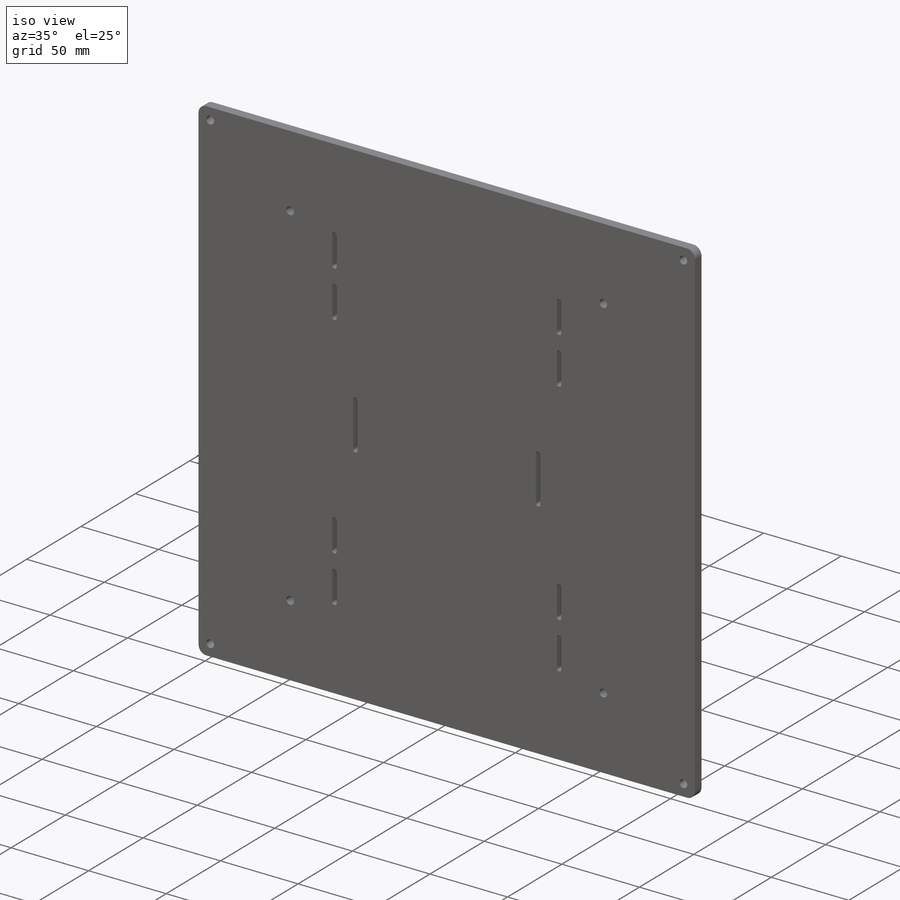
[diagram: iso view]
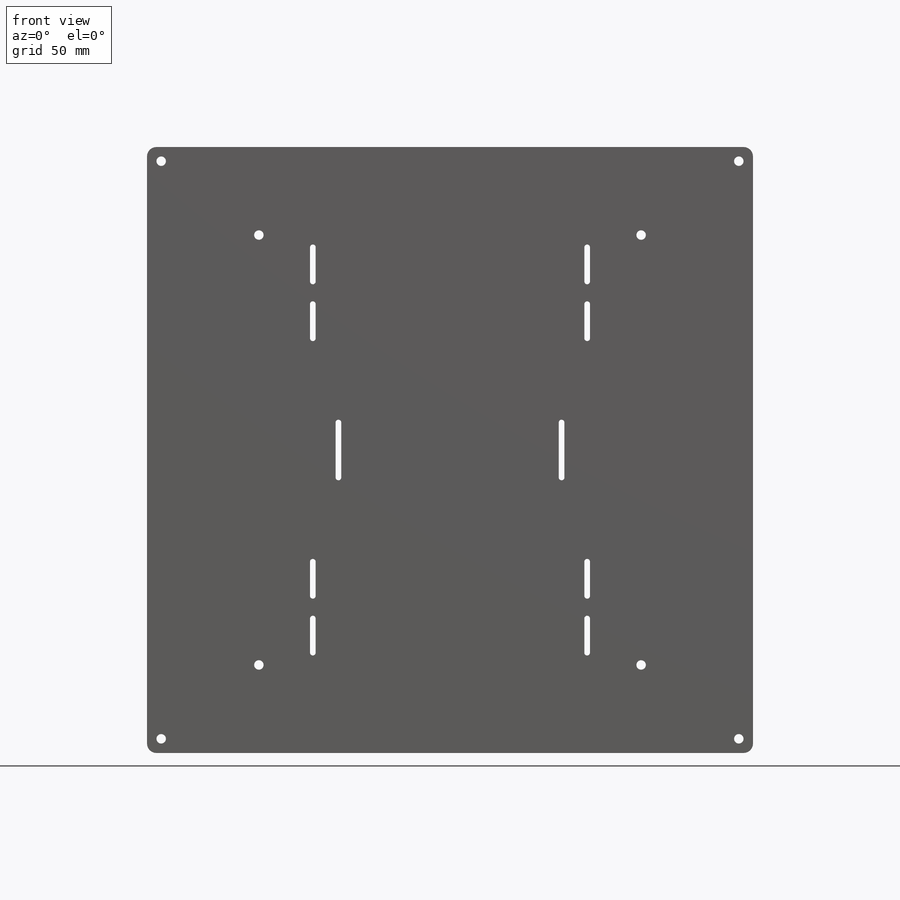
[diagram: front view]
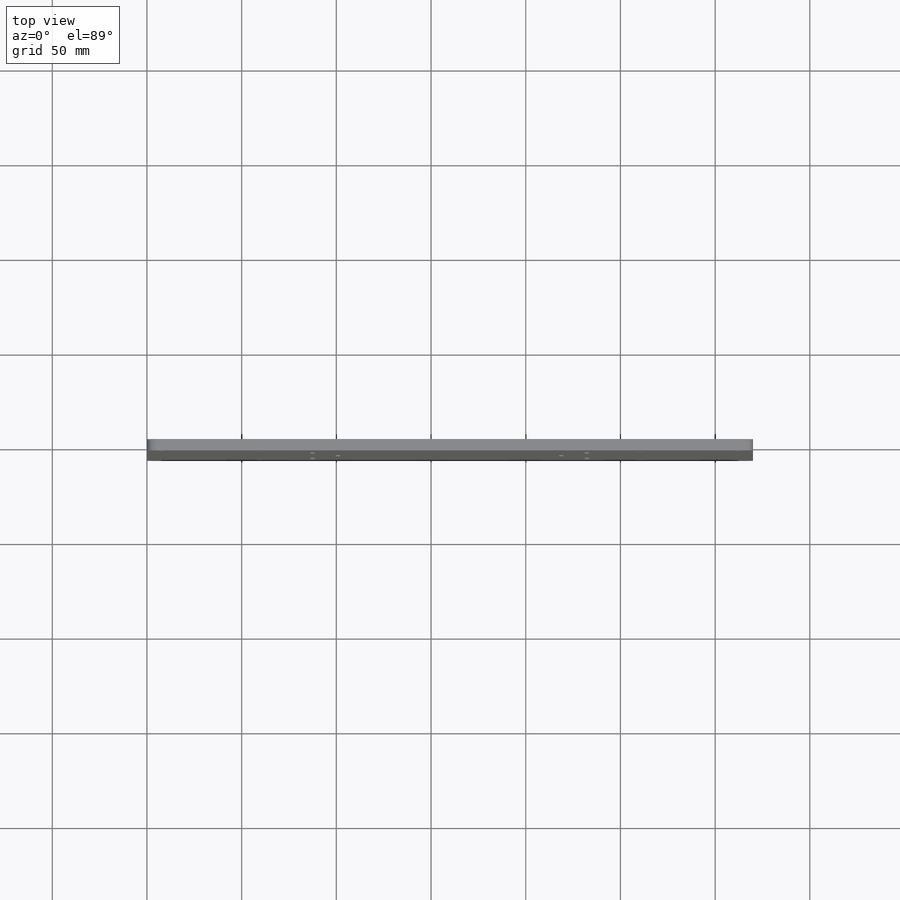
[diagram: top view]
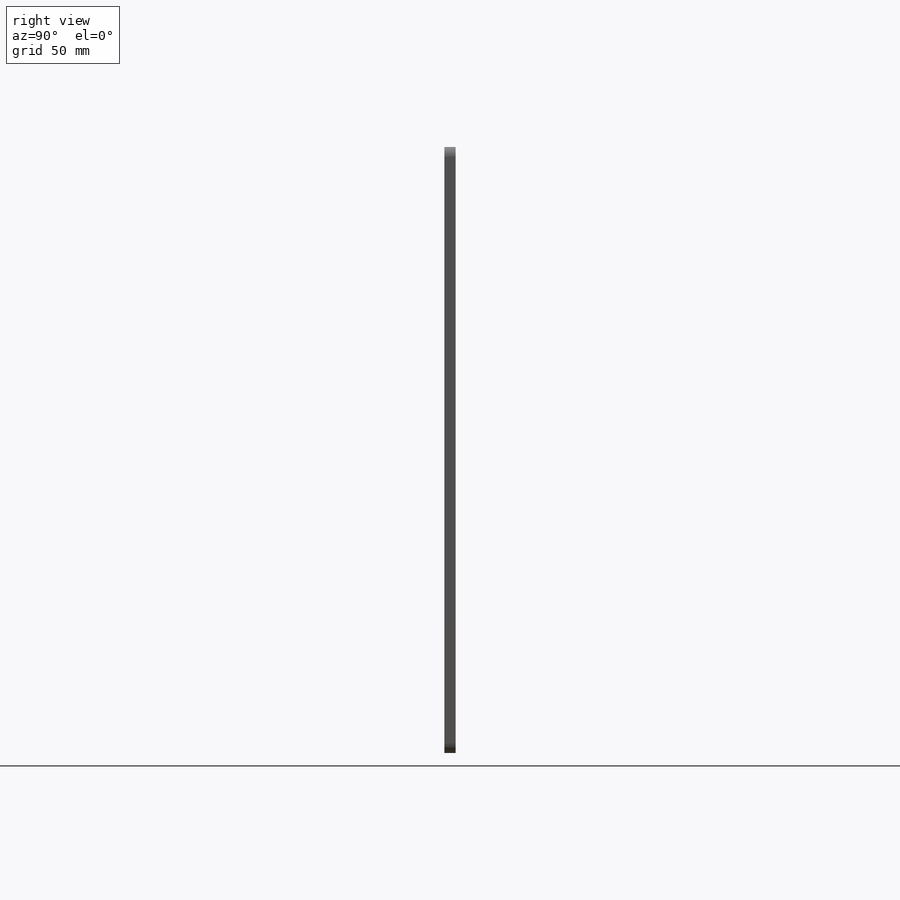
[diagram: right view]
SOLIDWORKS PART (.sldprt)
format: sldprt  version: not decoded by parser v0  size: 302,592 bytes
history: native  units: mm
features: fillet x6, plane x3, material x1, sketch x1, extrude x1 (+8 scaffold rows collapsed)
feature tree (20):
  scaffold x8  (default folders/planes/origin — collapsed)
  material  "Matériau <non spécifié>"
  plane  "Plan de face"
  plane  "Plan de dessus"
  plane  "Plan de droite"
  sketch  "Esquisse1"  dims[c1.D2=~10.957379mm c1.D4=5.0mm c1.D5=5.0mm c1.D16=5.0mm c1.D1=320.0mm c2.D2=7.5mm c2.D3=7.5mm c2.D5=3.0mm c2.D6=29.0mm c2.D7=144.85mm c2.D8=72.425mm c2.D9=12.01mm c2.D10=3.0mm c2.D11=21.0mm c2.D12=43.0mm c2.D13=3.0mm c2.D14=21.0mm c2.D15=9.0mm c2.D17=5.0mm c2.D18=27.0mm]
  extrude  "Boss.-Extru.1"  Depth=6mm
  fillet  "Congé1"  Radius=1.5mm
  fillet  "Congé2"  Radius=1.5mm
  fillet  "Congé3"  Radius=5mm
  fillet  "Congé4"  Radius=5mm
  fillet  "Congé5"  Radius=5mm
  fillet  "Congé6"  Radius=5mm
decode coverage: 8 of 8 modeling features carry decoded parameters
note: ~ marks probable driven/reference dimensions
note: suppression state not decoded; provenance and decode notes live in map.json
